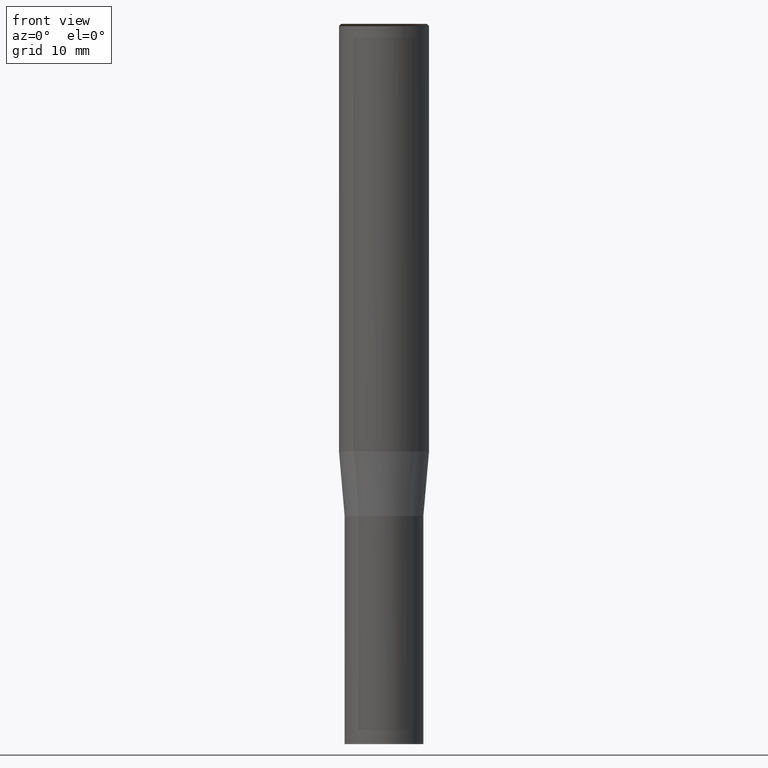
[diagram: clean part render]
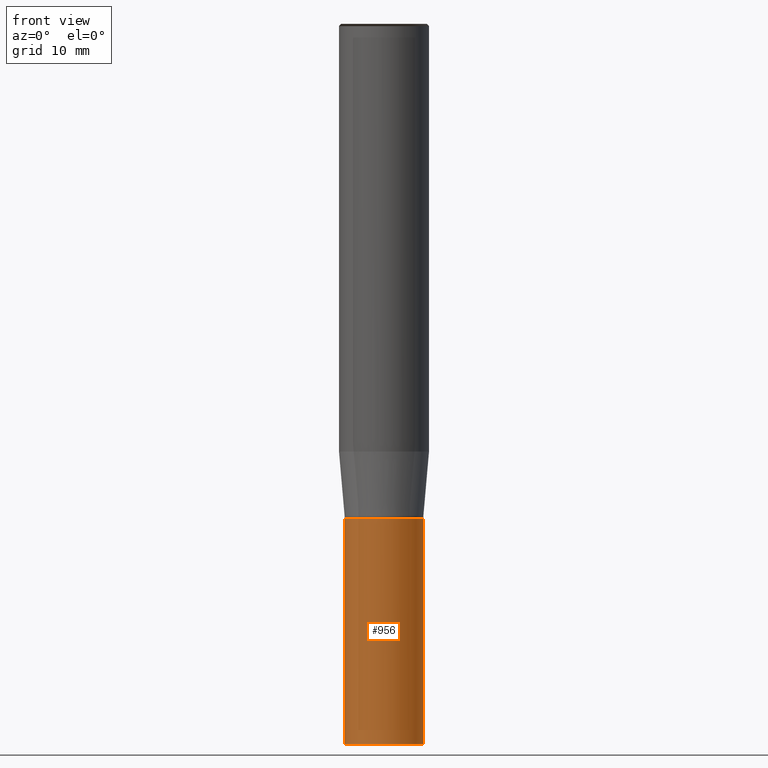
[diagram: same view with one face highlighted and labeled with its STEP entity id]
A machine part, front view. The second image highlights one B-rep face of the part: STEP entity #956.
In plain terms, the highlighted face is a freeform B-spline surface patch.
Its self-contained STEP definition (entity closure, byte-faithful):
#109=CARTESIAN_POINT('',(0.0,-3.5,-26.0));
#814=CARTESIAN_POINT('',(3.5,0.0,-26.0));
#818=CARTESIAN_POINT('',(-3.5,0.0,-26.0));
#819=CARTESIAN_POINT('',(3.5,0.0,-6.0));
#823=CARTESIAN_POINT('',(-3.5,0.0,-6.0));
#825=CARTESIAN_POINT('',(-3.5,-3.5,-26.0));
#826=CARTESIAN_POINT('',(3.5,-3.5,-26.0));
#827=CARTESIAN_POINT('',(-3.5,-3.5,-6.0));
#828=CARTESIAN_POINT('',(0.0,-3.5,-6.0));
#829=CARTESIAN_POINT('',(3.5,-3.5,-6.0));
#937=(
BOUNDED_SURFACE()
B_SPLINE_SURFACE(1,2,(
(#818,#825,#109,#826,#814),
(#823,#827,#828,#829,#819)
), .UNSPECIFIED.,.F.,.F.,.F.)
B_SPLINE_SURFACE_WITH_KNOTS((2,2),(3,2,3),(
0.0,1.0),(
0.0,0.5,1.0), .UNSPECIFIED.)
GEOMETRIC_REPRESENTATION_ITEM()
RATIONAL_B_SPLINE_SURFACE(((1.0,0.707106781187,1.0,0.707106781187,1.0),
(1.0,0.707106781187,1.0,0.707106781187,1.0)
))
REPRESENTATION_ITEM('')
SURFACE()
);
#938=(
BOUNDED_CURVE()
B_SPLINE_CURVE(2,(#814,#826,#109,#825,#818),.UNSPECIFIED.,.F.,.F.)
B_SPLINE_CURVE_WITH_KNOTS((3,2,3),
(0.0,0.5,1.0),.UNSPECIFIED.)
CURVE()
GEOMETRIC_REPRESENTATION_ITEM()
RATIONAL_B_SPLINE_CURVE((1.0,0.707106781187,1.0,0.707106781187,1.0))
REPRESENTATION_ITEM('')
);
#939=(
BOUNDED_CURVE()
B_SPLINE_CURVE(1,(#818,#823),.UNSPECIFIED.,.F.,.F.)
B_SPLINE_CURVE_WITH_KNOTS((2,2),
(0.0,1.0),.UNSPECIFIED.)
CURVE()
GEOMETRIC_REPRESENTATION_ITEM()
RATIONAL_B_SPLINE_CURVE((1.0,1.0))
REPRESENTATION_ITEM('')
);
#940=(
BOUNDED_CURVE()
B_SPLINE_CURVE(2,(#823,#827,#828,#829,#819),.UNSPECIFIED.,.F.,.F.)
B_SPLINE_CURVE_WITH_KNOTS((3,2,3),
(0.0,0.5,1.0),.UNSPECIFIED.)
CURVE()
GEOMETRIC_REPRESENTATION_ITEM()
RATIONAL_B_SPLINE_CURVE((1.0,0.707106781187,1.0,0.707106781187,1.0))
REPRESENTATION_ITEM('')
);
#941=(
BOUNDED_CURVE()
B_SPLINE_CURVE(1,(#819,#814),.UNSPECIFIED.,.F.,.F.)
B_SPLINE_CURVE_WITH_KNOTS((2,2),
(0.0,1.0),.UNSPECIFIED.)
CURVE()
GEOMETRIC_REPRESENTATION_ITEM()
RATIONAL_B_SPLINE_CURVE((1.0,1.0))
REPRESENTATION_ITEM('')
);
#942=VERTEX_POINT('',#814);
#943=VERTEX_POINT('',#818);
#944=VERTEX_POINT('',#819);
#945=VERTEX_POINT('',#823);
#946=EDGE_CURVE('',#942,#943,#938,.T.);
#947=EDGE_CURVE('',#943,#945,#939,.T.);
#948=EDGE_CURVE('',#945,#944,#940,.T.);
#949=EDGE_CURVE('',#944,#942,#941,.T.);
#950=ORIENTED_EDGE('',*,*,#946,.T.);
#951=ORIENTED_EDGE('',*,*,#947,.T.);
#952=ORIENTED_EDGE('',*,*,#948,.T.);
#953=ORIENTED_EDGE('',*,*,#949,.T.);
#954=EDGE_LOOP('',(#950,#951,#952,#953));
#955=FACE_OUTER_BOUND('',#954,.T.);
#956=ADVANCED_FACE('',(#955),#937,.T.);